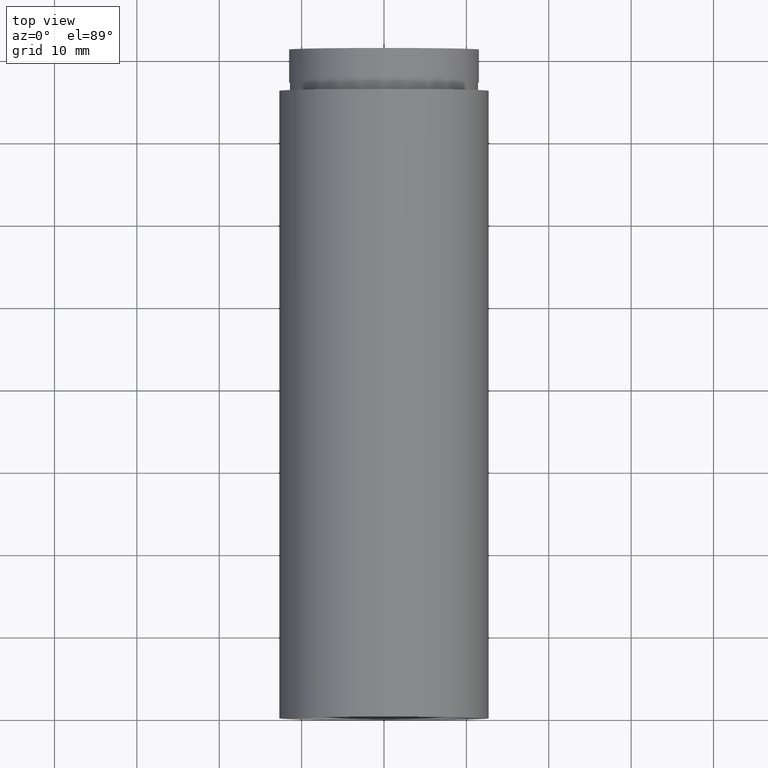
[diagram: clean part render]
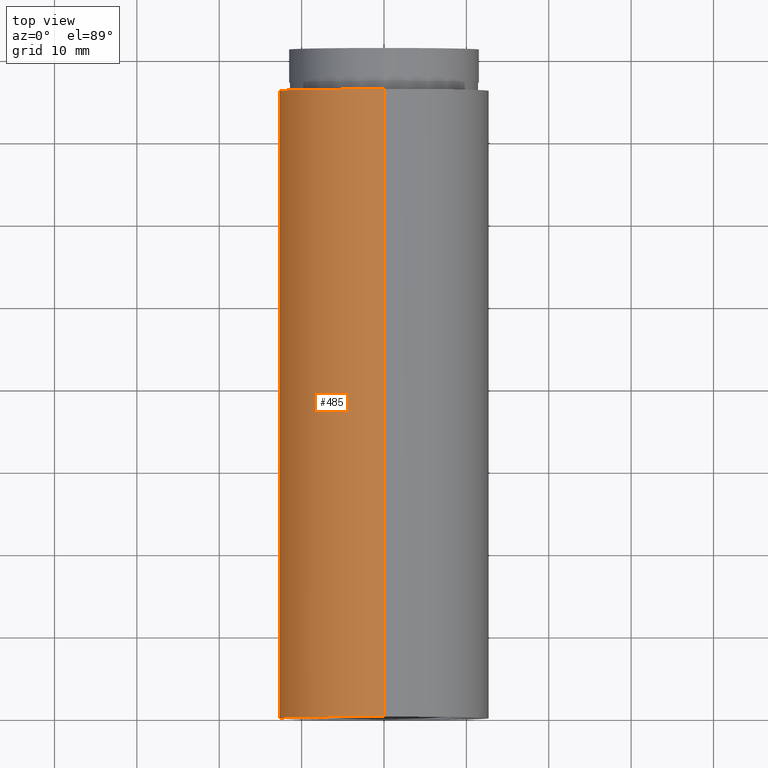
[diagram: same view with one face highlighted and labeled with its STEP entity id]
A machine part, top view. The second image highlights one B-rep face of the part: STEP entity #485.
In plain terms, the highlighted cylindrical surface (partial cylindrical patch) has radius 12.7 mm, axis along (-0, 1, -0).
Its self-contained STEP definition (entity closure, byte-faithful):
#13 = CIRCLE ( 'NONE', #193, 12.70000000000002100 ) ;
#24 = AXIS2_PLACEMENT_3D ( 'NONE', #325, #87, #369 ) ;
#27 = DIRECTION ( 'NONE',  ( -0.0000000000000000000, 1.000000000000000000, -0.0000000000000000000 ) ) ;
#31 = DIRECTION ( 'NONE',  ( 0.0000000000000000000, 0.0000000000000000000, 1.000000000000000000 ) ) ;
#34 = FACE_OUTER_BOUND ( 'NONE', #464, .T. ) ;
#37 = VERTEX_POINT ( 'NONE', #304 ) ;
#55 = VERTEX_POINT ( 'NONE', #343 ) ;
#60 = VECTOR ( 'NONE', #273, 1000.000000000000000 ) ;
#81 = CIRCLE ( 'NONE', #514, 12.70000000000002100 ) ;
#87 = DIRECTION ( 'NONE',  ( -0.0000000000000000000, 1.000000000000000000, -0.0000000000000000000 ) ) ;
#127 = CYLINDRICAL_SURFACE ( 'NONE', #24, 12.70000000000002100 ) ;
#152 = VECTOR ( 'NONE', #264, 1000.000000000000000 ) ;
#154 = ORIENTED_EDGE ( 'NONE', *, *, #177, .F. ) ;
#160 = CARTESIAN_POINT ( 'NONE',  ( 1.555301434917141000E-015, 161.3761669434274500, -12.70000000000002100 ) ) ;
#174 = CARTESIAN_POINT ( 'NONE',  ( 0.0000000000000000000, -2.775557561562891400E-014, 0.0000000000000000000 ) ) ;
#177 = EDGE_CURVE ( 'NONE', #217, #37, #576, .T. ) ;
#193 = AXIS2_PLACEMENT_3D ( 'NONE', #545, #27, #442 ) ;
#217 = VERTEX_POINT ( 'NONE', #602 ) ;
#220 = EDGE_CURVE ( 'NONE', #37, #55, #13, .T. ) ;
#264 = DIRECTION ( 'NONE',  ( -0.0000000000000000000, 1.000000000000000000, -0.0000000000000000000 ) ) ;
#273 = DIRECTION ( 'NONE',  ( -0.0000000000000000000, 1.000000000000000000, -0.0000000000000000000 ) ) ;
#304 = CARTESIAN_POINT ( 'NONE',  ( 1.555301434917141000E-015, 76.19999999999998900, -12.70000000000002100 ) ) ;
#325 = CARTESIAN_POINT ( 'NONE',  ( 0.0000000000000000000, 161.3761669434274500, 0.0000000000000000000 ) ) ;
#327 = EDGE_CURVE ( 'NONE', #217, #611, #81, .T. ) ;
#343 = CARTESIAN_POINT ( 'NONE',  ( 0.0000000000000000000, 76.19999999999998900, 12.70000000000002100 ) ) ;
#348 = ORIENTED_EDGE ( 'NONE', *, *, #220, .F. ) ;
#349 = EDGE_CURVE ( 'NONE', #611, #55, #525, .T. ) ;
#369 = DIRECTION ( 'NONE',  ( 0.0000000000000000000, 0.0000000000000000000, 1.000000000000000000 ) ) ;
#374 = ORIENTED_EDGE ( 'NONE', *, *, #349, .T. ) ;
#437 = CARTESIAN_POINT ( 'NONE',  ( 0.0000000000000000000, -2.775557561562891400E-014, 12.70000000000002100 ) ) ;
#442 = DIRECTION ( 'NONE',  ( 0.0000000000000000000, 0.0000000000000000000, 1.000000000000000000 ) ) ;
#454 = DIRECTION ( 'NONE',  ( -0.0000000000000000000, 1.000000000000000000, -0.0000000000000000000 ) ) ;
#464 = EDGE_LOOP ( 'NONE', ( #154, #569, #374, #348 ) ) ;
#485 = ADVANCED_FACE ( 'NONE', ( #34 ), #127, .T. ) ;
#510 = CARTESIAN_POINT ( 'NONE',  ( 0.0000000000000000000, 161.3761669434274500, 12.70000000000002100 ) ) ;
#514 = AXIS2_PLACEMENT_3D ( 'NONE', #174, #454, #31 ) ;
#525 = LINE ( 'NONE', #510, #60 ) ;
#545 = CARTESIAN_POINT ( 'NONE',  ( 0.0000000000000000000, 76.19999999999998900, 0.0000000000000000000 ) ) ;
#569 = ORIENTED_EDGE ( 'NONE', *, *, #327, .T. ) ;
#576 = LINE ( 'NONE', #160, #152 ) ;
#602 = CARTESIAN_POINT ( 'NONE',  ( 1.555301434917141000E-015, -2.775557561562891400E-014, -12.70000000000002100 ) ) ;
#611 = VERTEX_POINT ( 'NONE', #437 ) ;